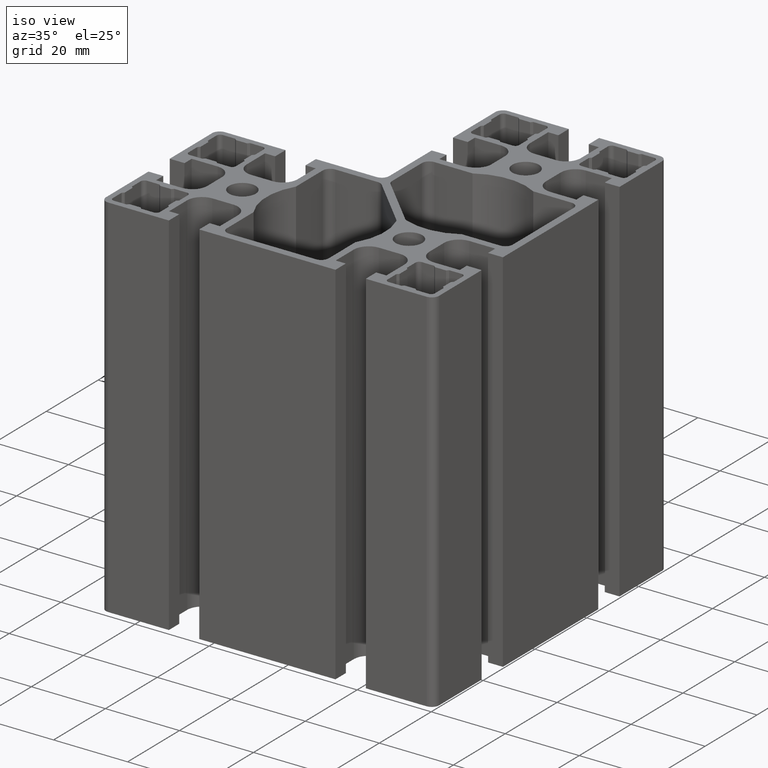
[diagram: clean part render]
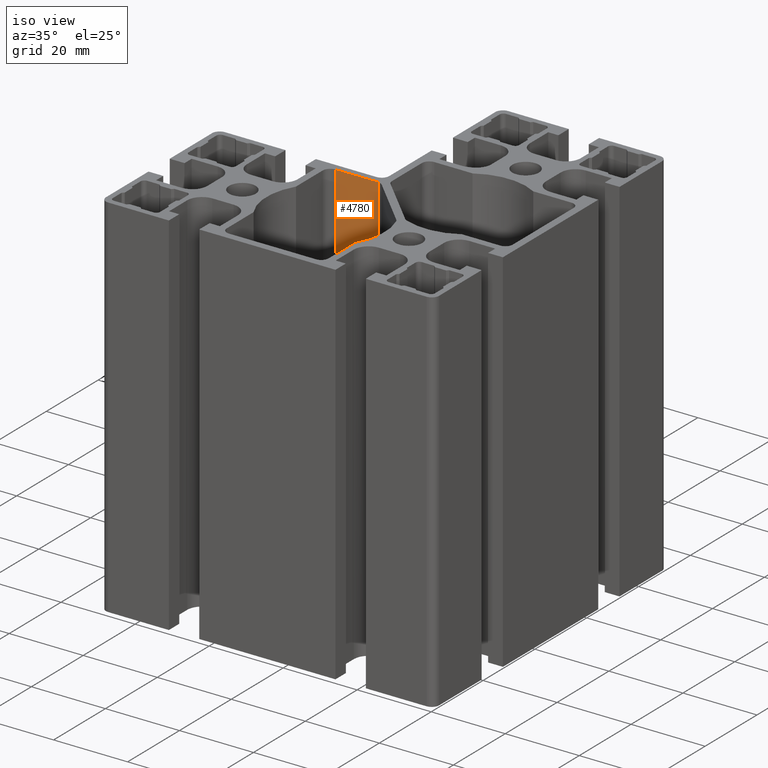
[diagram: same view with one face highlighted and labeled with its STEP entity id]
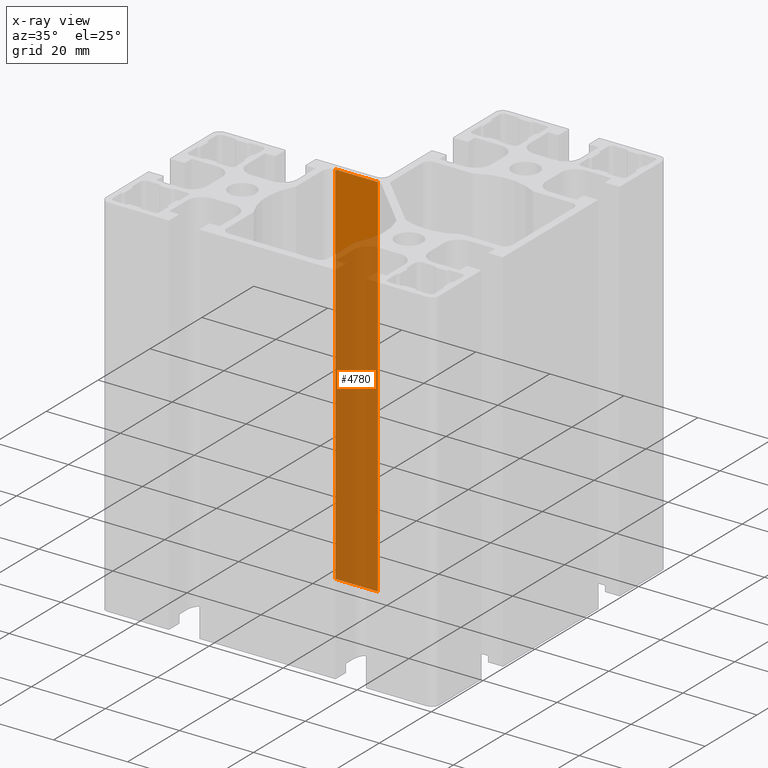
[diagram: x-ray of the same camera — body ghosted, the highlighted face saturated]
A machine part, iso view. The second image highlights one B-rep face of the part: STEP entity #4780.
The next image is the same camera in x-ray: the body ghosted, the highlighted face saturated — about 83% of this face is hidden behind the body in this view.
In plain terms, the highlighted planar face has unit normal (0, 1, 0).
Its self-contained STEP definition (entity closure, byte-faithful):
#226=FACE_OUTER_BOUND('',#470,.T.);
#470=EDGE_LOOP('',(#3174,#3175,#3176,#3177));
#745=LINE('',#6765,#1348);
#746=LINE('',#6769,#1349);
#747=LINE('',#6771,#1350);
#748=LINE('',#6772,#1351);
#1348=VECTOR('',#5430,100.);
#1349=VECTOR('',#5435,11.5073593128805);
#1350=VECTOR('',#5436,100.);
#1351=VECTOR('',#5437,11.5073593128805);
#1951=VERTEX_POINT('',#6762);
#1952=VERTEX_POINT('',#6764);
#1953=VERTEX_POINT('',#6768);
#1954=VERTEX_POINT('',#6770);
#2442=EDGE_CURVE('',#1951,#1952,#745,.T.);
#2444=EDGE_CURVE('',#1953,#1951,#746,.T.);
#2445=EDGE_CURVE('',#1953,#1954,#747,.T.);
#2446=EDGE_CURVE('',#1952,#1954,#748,.T.);
#3174=ORIENTED_EDGE('',*,*,#2442,.F.);
#3175=ORIENTED_EDGE('',*,*,#2444,.F.);
#3176=ORIENTED_EDGE('',*,*,#2445,.T.);
#3177=ORIENTED_EDGE('',*,*,#2446,.F.);
#4592=PLANE('',#5034);
#4780=ADVANCED_FACE('',(#226),#4592,.F.);
#5034=AXIS2_PLACEMENT_3D('',#6767,#5433,#5434);
#5430=DIRECTION('',(0.,0.,1.));
#5433=DIRECTION('center_axis',(0.,1.,0.));
#5434=DIRECTION('ref_axis',(-1.,0.,0.));
#5435=DIRECTION('',(-1.,0.,0.));
#5436=DIRECTION('',(0.,0.,1.));
#5437=DIRECTION('',(1.,0.,0.));
#6762=CARTESIAN_POINT('',(-34.25,20.5000000000017,-50.));
#6764=CARTESIAN_POINT('',(-34.25,20.5000000000017,50.));
#6765=CARTESIAN_POINT('',(-34.25,20.5000000000017,0.));
#6767=CARTESIAN_POINT('Origin',(-22.7426406871195,20.5000000000017,0.));
#6768=CARTESIAN_POINT('',(-22.7426406871195,20.5000000000017,-50.));
#6769=CARTESIAN_POINT('',(-19.7676169663493,20.5000000000017,-50.));
#6770=CARTESIAN_POINT('',(-22.7426406871195,20.5000000000017,50.));
#6771=CARTESIAN_POINT('',(-22.7426406871195,20.5000000000017,0.));
#6772=CARTESIAN_POINT('',(-19.7676169663493,20.5000000000017,50.));